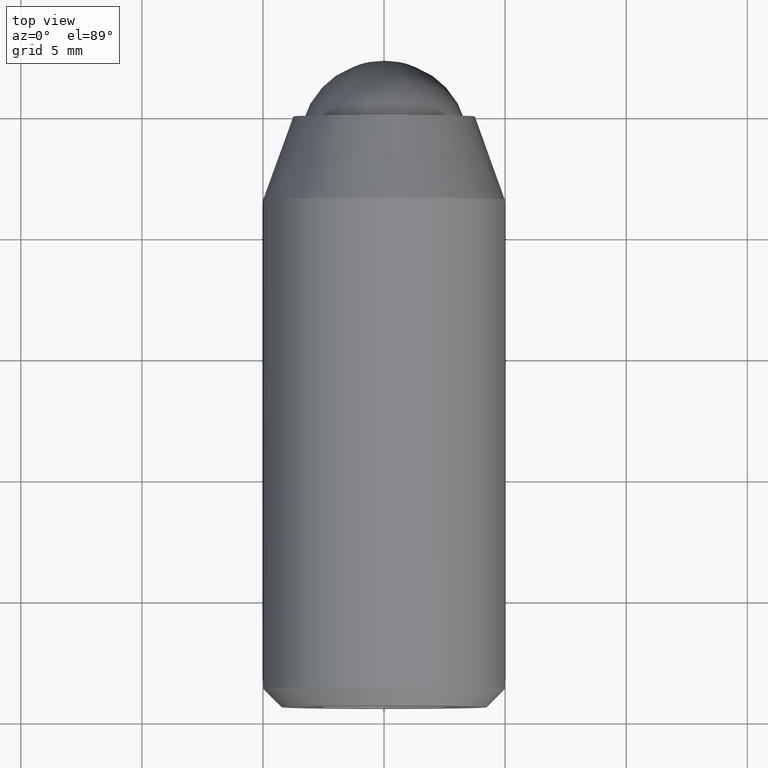
[diagram: clean part render]
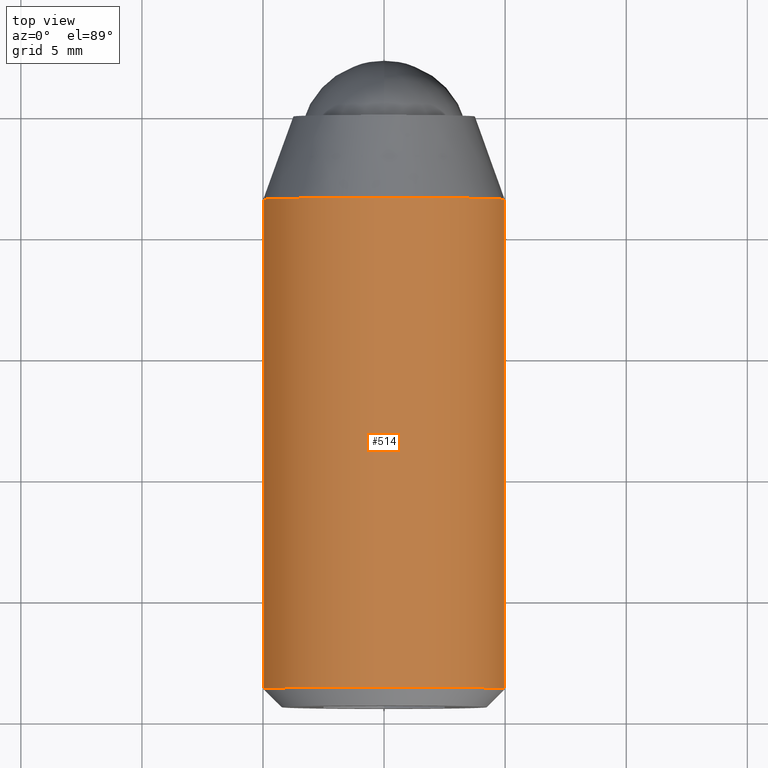
[diagram: same view with one face highlighted and labeled with its STEP entity id]
A machine part, top view. The second image highlights one B-rep face of the part: STEP entity #514.
In plain terms, the highlighted face is a freeform B-spline surface patch.
Its self-contained STEP definition (entity closure, byte-faithful):
#305=CARTESIAN_POINT('',(-4.990674234761062,-3.434346994595417,0.305238698078963));
#306=VERTEX_POINT('',#305);
#312=CARTESIAN_POINT('',(0.0,-3.434347000000000,4.999999999999999));
#313=VERTEX_POINT('',#312);
#314=CARTESIAN_POINT('',(0.0,-3.434347000000000,4.999999999999999));
#315=CARTESIAN_POINT('',(-4.703534110934704,-3.434347000000000,4.999999999999999));
#316=CARTESIAN_POINT('',(-4.990674234761062,-3.434346994595417,0.305238698078963));
#324=(BOUNDED_CURVE()B_SPLINE_CURVE(2,(#314,#315,#316),.UNSPECIFIED.,.F.,.U.)B_SPLINE_CURVE_WITH_KNOTS((3,3),(0.500000000000000,0.739333100519220),.UNSPECIFIED.)CURVE()GEOMETRIC_REPRESENTATION_ITEM()RATIONAL_B_SPLINE_CURVE((1.0,0.719603831281288,0.976072338027853))REPRESENTATION_ITEM(''));
#325=EDGE_CURVE('',#313,#306,#324,.T.);
#327=CARTESIAN_POINT('',(4.967346893417139,-3.434347000000000,0.570495258870046));
#328=VERTEX_POINT('',#327);
#329=CARTESIAN_POINT('',(4.967346893417139,-3.434347000000000,0.570495258870046));
#330=CARTESIAN_POINT('',(4.458622315056616,-3.434347000000000,4.999999999999999));
#331=CARTESIAN_POINT('',(0.0,-3.434347000000000,4.999999999999999));
#339=(BOUNDED_CURVE()B_SPLINE_CURVE(2,(#329,#330,#331),.UNSPECIFIED.,.F.,.U.)B_SPLINE_CURVE_WITH_KNOTS((3,3),(0.269767481110062,0.500000000000000),.UNSPECIFIED.)CURVE()GEOMETRIC_REPRESENTATION_ITEM()RATIONAL_B_SPLINE_CURVE((0.957344278464731,0.730265825867189,1.0))REPRESENTATION_ITEM(''));
#340=EDGE_CURVE('',#328,#313,#339,.T.);
#431=CARTESIAN_POINT('',(4.975395113979117,-2.928955674999999,0.500419776003076));
#432=CARTESIAN_POINT('',(4.971379498040641,-2.928955674999999,0.535383557648189));
#433=CARTESIAN_POINT('',(4.489075762930407,-2.928955674999998,4.734779799566036));
#434=CARTESIAN_POINT('',(0.305242697674285,-2.928955674999999,4.990673992109333));
#435=CARTESIAN_POINT('',(-4.685431294435048,-2.928955674999999,5.295916689783618));
#436=CARTESIAN_POINT('',(-4.992697433181544,-2.928955674999999,0.272159728579269));
#437=CARTESIAN_POINT('',(-4.994709792734736,-2.928955674999997,0.239257940718600));
#438=CARTESIAN_POINT('',(4.975395113979117,-24.168026108125002,0.500419776003076));
#439=CARTESIAN_POINT('',(4.971379498040641,-24.168026108125005,0.535383557648189));
#440=CARTESIAN_POINT('',(4.489075762930407,-24.168026108125002,4.734779799566036));
#441=CARTESIAN_POINT('',(0.305242697674285,-24.168026108125009,4.990673992109333));
#442=CARTESIAN_POINT('',(-4.685431294435048,-24.168026108125009,5.295916689783618));
#443=CARTESIAN_POINT('',(-4.992697433181544,-24.168026108125019,0.272159728579269));
#444=CARTESIAN_POINT('',(-4.994709792734736,-24.168026108124998,0.239257940718600));
#452=(BOUNDED_SURFACE()B_SPLINE_SURFACE(2,1,((#431,#438),(#432,#439),(#433,#440),(#434,#441),(#435,#442),(#436,#443),(#437,#444)),.UNSPECIFIED.,.F.,.F.,.U.)B_SPLINE_SURFACE_WITH_KNOTS((3,1,2,1,3),(2,2),(0.0,0.077881138398475,7.368039836164944,15.652311083626840,15.730187994129020),(0.0,21.239070433125018),.UNSPECIFIED.)GEOMETRIC_REPRESENTATION_ITEM()RATIONAL_B_SPLINE_SURFACE(((0.942326293549293,0.942326293549293),(0.940233622867946,0.940233622867946),(0.742253967444162,0.742253967444162),(1.0,1.0),(0.707106781186548,0.707106781186548),(1.002753364575697,1.002753364575697),(1.005506729151395,1.005506729151395)))REPRESENTATION_ITEM('')SURFACE());
#453=CARTESIAN_POINT('',(4.967345967176772,-23.649999999999999,0.570503323717449));
#454=VERTEX_POINT('',#453);
#455=CARTESIAN_POINT('',(0.0,-23.649999999999999,4.999999999999999));
#456=VERTEX_POINT('',#455);
#457=CARTESIAN_POINT('',(4.967345967176772,-23.650000000000006,0.570503323717449));
#458=CARTESIAN_POINT('',(4.458615028566292,-23.650000000000009,5.0));
#459=CARTESIAN_POINT('',(0.0,-23.649999999999999,4.999999999999999));
#467=(BOUNDED_CURVE()B_SPLINE_CURVE(2,(#457,#458,#459),.UNSPECIFIED.,.F.,.U.)B_SPLINE_CURVE_WITH_KNOTS((3,3),(0.269767755877675,0.500000000000000),.UNSPECIFIED.)CURVE()GEOMETRIC_REPRESENTATION_ITEM()RATIONAL_B_SPLINE_CURVE((0.957343736458560,0.730266147777471,1.0))REPRESENTATION_ITEM(''));
#468=EDGE_CURVE('',#454,#456,#467,.T.);
#469=ORIENTED_EDGE('',*,*,#468,.F.);
#470=CARTESIAN_POINT('',(4.967346893417139,-3.434347000000000,0.570495258870046));
#471=CARTESIAN_POINT('',(4.967345967176772,-23.649999999999999,0.570503323717449));
#472=QUASI_UNIFORM_CURVE('',1,(#470,#471),.UNSPECIFIED.,.F.,.U.);
#473=EDGE_CURVE('',#328,#454,#472,.T.);
#474=ORIENTED_EDGE('',*,*,#473,.F.);
#475=ORIENTED_EDGE('',*,*,#340,.T.);
#476=ORIENTED_EDGE('',*,*,#325,.T.);
#477=CARTESIAN_POINT('',(-4.990674023527537,-23.649999999999999,0.305242183990346));
#478=VERTEX_POINT('',#477);
#479=CARTESIAN_POINT('',(-4.990674234761062,-3.434346994595417,0.305238698078963));
#480=CARTESIAN_POINT('',(-4.990674023527537,-23.649999999999999,0.305242183990346));
#481=QUASI_UNIFORM_CURVE('',1,(#479,#480),.UNSPECIFIED.,.F.,.U.);
#482=EDGE_CURVE('',#306,#478,#481,.T.);
#483=ORIENTED_EDGE('',*,*,#482,.T.);
#484=CARTESIAN_POINT('',(-4.984586668668259,-23.649999999993430,0.392295478689817));
#485=VERTEX_POINT('',#484);
#486=CARTESIAN_POINT('',(-4.984586668668259,-23.649999999993430,0.392295478689817));
#487=CARTESIAN_POINT('',(-4.988010219821137,-23.650000000000002,0.348795136743886));
#488=CARTESIAN_POINT('',(-4.990674023527537,-23.650000000000002,0.305242183990346));
#496=(BOUNDED_CURVE()B_SPLINE_CURVE(2,(#486,#487,#488),.UNSPECIFIED.,.F.,.U.)B_SPLINE_CURVE_WITH_KNOTS((3,3),(0.736331300629323,0.739332997762028),.UNSPECIFIED.)CURVE()GEOMETRIC_REPRESENTATION_ITEM()RATIONAL_B_SPLINE_CURVE((0.969723356164627,0.972855512625487,0.976072117799462))REPRESENTATION_ITEM(''));
#497=EDGE_CURVE('',#485,#478,#496,.T.);
#498=ORIENTED_EDGE('',*,*,#497,.F.);
#499=CARTESIAN_POINT('',(0.0,-23.649999999999999,4.999999999999999));
#500=CARTESIAN_POINT('',(-4.621952458197871,-23.649999999999999,4.999999999999999));
#501=CARTESIAN_POINT('',(-4.984586668668259,-23.649999999993423,0.392295478689817));
#509=(BOUNDED_CURVE()B_SPLINE_CURVE(2,(#499,#500,#501),.UNSPECIFIED.,.F.,.U.)B_SPLINE_CURVE_WITH_KNOTS((3,3),(0.500000000000000,0.736331300629322),.UNSPECIFIED.)CURVE()GEOMETRIC_REPRESENTATION_ITEM()RATIONAL_B_SPLINE_CURVE((1.0,0.723120658609233,0.969723356164627))REPRESENTATION_ITEM(''));
#510=EDGE_CURVE('',#456,#485,#509,.T.);
#511=ORIENTED_EDGE('',*,*,#510,.F.);
#512=EDGE_LOOP('',(#469,#474,#475,#476,#483,#498,#511));
#513=FACE_OUTER_BOUND('',#512,.T.);
#514=ADVANCED_FACE('',(#513),#452,.T.);